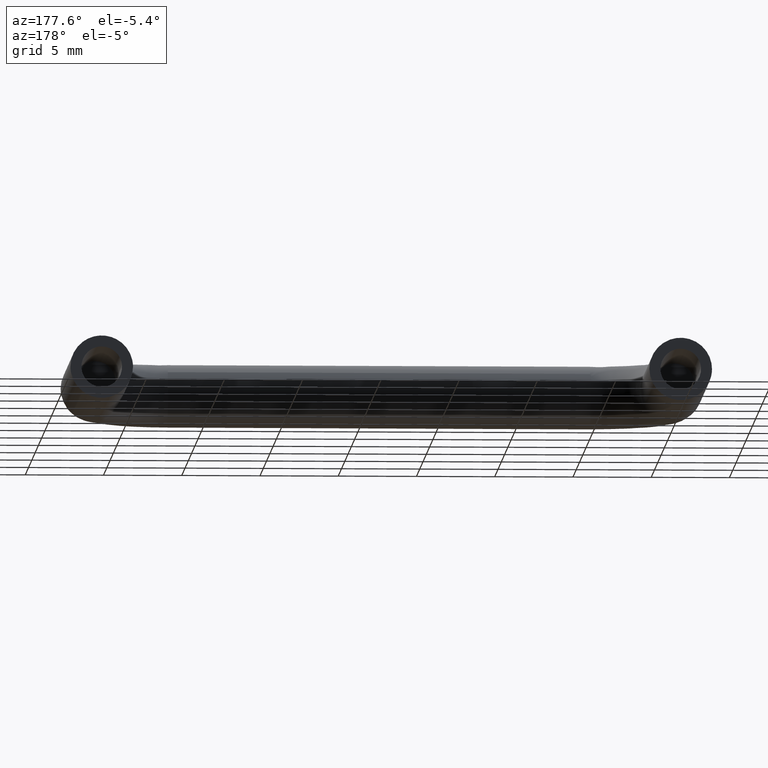
[diagram: clean part render]
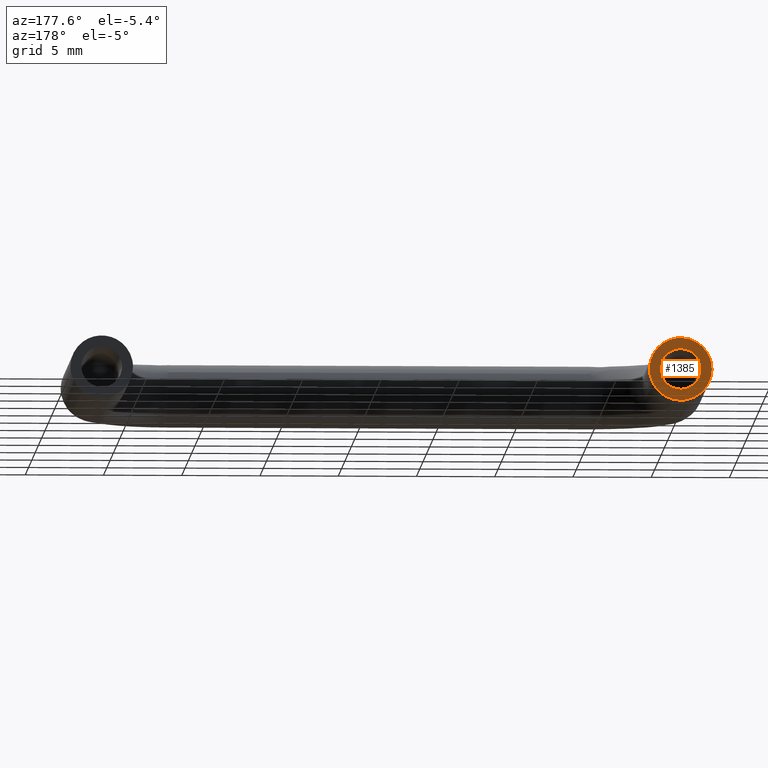
[diagram: same view with one face highlighted and labeled with its STEP entity id]
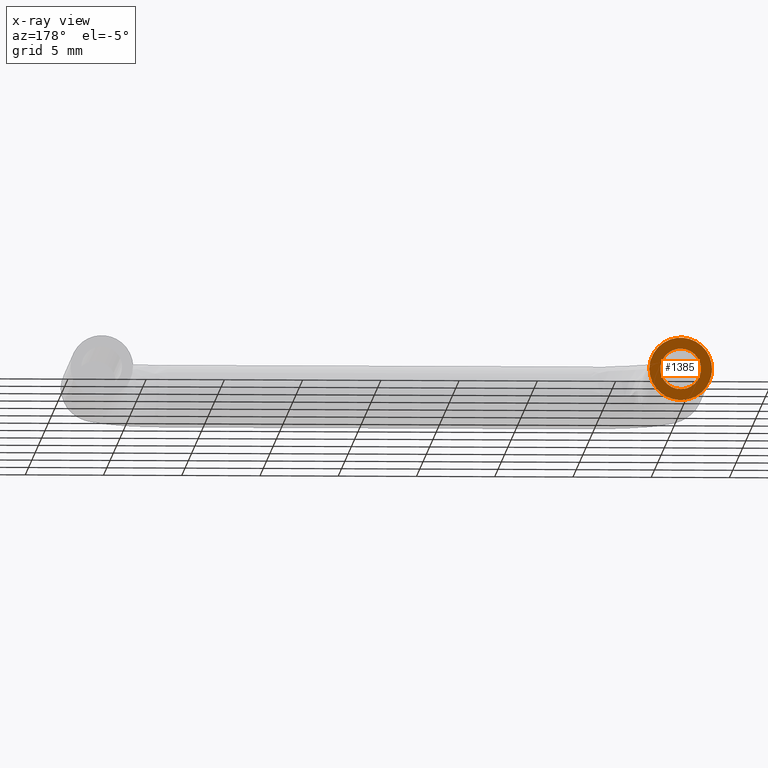
[diagram: x-ray of the same camera — body ghosted, the highlighted face saturated]
A machine part, auxiliary view. The second image highlights one B-rep face of the part: STEP entity #1385.
The next image is the same camera in x-ray: the body ghosted, the highlighted face saturated — about 0% of this face is hidden behind the body in this view.
In plain terms, the highlighted face is a freeform B-spline surface patch.
Its self-contained STEP definition (entity closure, byte-faithful):
#79=CARTESIAN_POINT('',(-1.295992533852372,-2.775558E-017,0.101996824455019));
#80=VERTEX_POINT('',#79);
#86=CARTESIAN_POINT('',(0.0,0.0,1.300000000000000));
#87=VERTEX_POINT('',#86);
#88=CARTESIAN_POINT('',(0.0,0.0,1.300000000000000));
#89=CARTESIAN_POINT('',(-1.201707639139262,0.0,1.300000000000000));
#90=CARTESIAN_POINT('',(-1.295992533852373,-2.775558E-017,0.101996824455019));
#98=(BOUNDED_CURVE()B_SPLINE_CURVE(2,(#88,#89,#90),.UNSPECIFIED.,.F.,.U.)B_SPLINE_CURVE_WITH_KNOTS((3,3),(0.0,0.236331300630434),.UNSPECIFIED.)CURVE()GEOMETRIC_REPRESENTATION_ITEM()RATIONAL_B_SPLINE_CURVE((1.0,0.723120658607931,0.969723356166946))REPRESENTATION_ITEM(''));
#99=EDGE_CURVE('',#87,#80,#98,.T.);
#101=CARTESIAN_POINT('',(1.295992533852372,-2.775558E-017,-0.101996824455019));
#102=VERTEX_POINT('',#101);
#103=CARTESIAN_POINT('',(1.295992533852372,-2.775558E-017,-0.101996824455019));
#104=CARTESIAN_POINT('',(1.300000000000001,0.0,-0.051077139118831));
#105=CARTESIAN_POINT('',(1.300000000000000,0.0,0.0));
#106=CARTESIAN_POINT('',(1.300000000000000,0.0,1.300000000000000));
#107=CARTESIAN_POINT('',(0.0,0.0,1.300000000000000));
#115=(BOUNDED_CURVE()B_SPLINE_CURVE(2,(#103,#104,#105,#106,#107),.UNSPECIFIED.,.F.,.U.)B_SPLINE_CURVE_WITH_KNOTS((3,2,3),(0.736331300630434,0.750000000000000,1.0),.UNSPECIFIED.)CURVE()GEOMETRIC_REPRESENTATION_ITEM()RATIONAL_B_SPLINE_CURVE((0.969723356166946,0.983986122578617,1.0,0.707106781186548,1.0))REPRESENTATION_ITEM(''));
#116=EDGE_CURVE('',#102,#87,#115,.T.);
#192=CARTESIAN_POINT('',(0.0,0.0,-1.300000000000000));
#193=VERTEX_POINT('',#192);
#194=CARTESIAN_POINT('',(0.0,0.0,-1.300000000000000));
#195=CARTESIAN_POINT('',(1.201707639139269,0.0,-1.300000000000000));
#196=CARTESIAN_POINT('',(1.295992533852372,-2.775558E-017,-0.101996824455019));
#204=(BOUNDED_CURVE()B_SPLINE_CURVE(2,(#194,#195,#196),.UNSPECIFIED.,.F.,.U.)B_SPLINE_CURVE_WITH_KNOTS((3,3),(0.500000000000000,0.736331300630435),.UNSPECIFIED.)CURVE()GEOMETRIC_REPRESENTATION_ITEM()RATIONAL_B_SPLINE_CURVE((1.0,0.723120658607929,0.969723356166948))REPRESENTATION_ITEM(''));
#205=EDGE_CURVE('',#193,#102,#204,.T.);
#207=CARTESIAN_POINT('',(-1.295992533852372,-2.775558E-017,0.101996824455019));
#208=CARTESIAN_POINT('',(-1.300000000000000,0.0,0.051077139118831));
#209=CARTESIAN_POINT('',(-1.300000000000000,0.0,0.0));
#210=CARTESIAN_POINT('',(-1.300000000000000,0.0,-1.300000000000000));
#211=CARTESIAN_POINT('',(0.0,0.0,-1.300000000000000));
#219=(BOUNDED_CURVE()B_SPLINE_CURVE(2,(#207,#208,#209,#210,#211),.UNSPECIFIED.,.F.,.U.)B_SPLINE_CURVE_WITH_KNOTS((3,2,3),(0.236331300630434,0.250000000000000,0.500000000000000),.UNSPECIFIED.)CURVE()GEOMETRIC_REPRESENTATION_ITEM()RATIONAL_B_SPLINE_CURVE((0.969723356166946,0.983986122578617,1.0,0.707106781186548,1.0))REPRESENTATION_ITEM(''));
#220=EDGE_CURVE('',#80,#193,#219,.T.);
#909=CARTESIAN_POINT('',(-1.654334544362891,6.163132E-016,1.123911569175985));
#910=VERTEX_POINT('',#909);
#916=CARTESIAN_POINT('',(-2.0,0.0,0.0));
#917=VERTEX_POINT('',#916);
#918=CARTESIAN_POINT('',(-2.0,0.0,0.0));
#919=CARTESIAN_POINT('',(-2.000000000000000,0.0,0.615111482286668));
#920=CARTESIAN_POINT('',(-1.654334544362892,6.163132E-016,1.123911569175985));
#928=(BOUNDED_CURVE()B_SPLINE_CURVE(2,(#918,#919,#920),.UNSPECIFIED.,.F.,.U.)B_SPLINE_CURVE_WITH_KNOTS((3,3),(0.500000000000000,0.596450219094675),.UNSPECIFIED.)CURVE()GEOMETRIC_REPRESENTATION_ITEM()RATIONAL_B_SPLINE_CURVE((1.0,0.887001539496392,0.861192889176255))REPRESENTATION_ITEM(''));
#929=EDGE_CURVE('',#917,#910,#928,.T.);
#931=CARTESIAN_POINT('',(2.0,0.0,0.0));
#932=VERTEX_POINT('',#931);
#933=CARTESIAN_POINT('',(2.0,0.0,0.0));
#934=CARTESIAN_POINT('',(2.000000000000000,0.0,-2.000000000000000));
#935=CARTESIAN_POINT('',(0.0,0.0,-2.0));
#936=CARTESIAN_POINT('',(-2.000000000000000,0.0,-2.000000000000000));
#937=CARTESIAN_POINT('',(-2.0,0.0,0.0));
#945=(BOUNDED_CURVE()B_SPLINE_CURVE(2,(#933,#934,#935,#936,#937),.UNSPECIFIED.,.F.,.U.)B_SPLINE_CURVE_WITH_KNOTS((3,2,3),(0.0,0.250000000000000,0.500000000000000),.UNSPECIFIED.)CURVE()GEOMETRIC_REPRESENTATION_ITEM()RATIONAL_B_SPLINE_CURVE((1.0,0.707106781186548,1.0,0.707106781186548,1.0))REPRESENTATION_ITEM(''));
#946=EDGE_CURVE('',#932,#917,#945,.T.);
#948=CARTESIAN_POINT('',(-0.568029256808809,-2.775558E-016,1.917639894090389));
#949=VERTEX_POINT('',#948);
#950=CARTESIAN_POINT('',(-0.568029256808809,-2.775558E-016,1.917639894090389));
#951=CARTESIAN_POINT('',(-0.289985436214155,0.0,2.000000000000000));
#952=CARTESIAN_POINT('',(0.0,0.0,2.0));
#953=CARTESIAN_POINT('',(2.000000000000000,0.0,2.000000000000000));
#954=CARTESIAN_POINT('',(2.0,0.0,0.0));
#962=(BOUNDED_CURVE()B_SPLINE_CURVE(2,(#950,#951,#952,#953,#954),.UNSPECIFIED.,.F.,.U.)B_SPLINE_CURVE_WITH_KNOTS((3,2,3),(0.701641637059280,0.750000000000000,1.0),.UNSPECIFIED.)CURVE()GEOMETRIC_REPRESENTATION_ITEM()RATIONAL_B_SPLINE_CURVE((0.908607385770247,0.943344653686973,1.0,0.707106781186548,1.0))REPRESENTATION_ITEM(''));
#963=EDGE_CURVE('',#949,#932,#962,.T.);
#1069=CARTESIAN_POINT('',(-1.654334544362892,6.163132E-016,1.123911569175985));
#1070=CARTESIAN_POINT('',(-1.252923917225407,0.0,1.714765409602162));
#1071=CARTESIAN_POINT('',(-0.568029256808809,-2.775558E-016,1.917639894090389));
#1079=(BOUNDED_CURVE()B_SPLINE_CURVE(2,(#1069,#1070,#1071),.UNSPECIFIED.,.F.,.U.)B_SPLINE_CURVE_WITH_KNOTS((3,3),(0.596450219094674,0.701641637059280),.UNSPECIFIED.)CURVE()GEOMETRIC_REPRESENTATION_ITEM()RATIONAL_B_SPLINE_CURVE((0.861192889176256,0.833045223484973,0.908607385770247))REPRESENTATION_ITEM(''));
#1080=EDGE_CURVE('',#910,#949,#1079,.T.);
#1368=CARTESIAN_POINT('',(-2.199799992247224,0.0,-2.199776240921557));
#1369=CARTESIAN_POINT('',(2.199800099535584,0.0,-2.199776240921557));
#1370=CARTESIAN_POINT('',(-2.199799992247224,0.0,2.199300846195758));
#1371=CARTESIAN_POINT('',(2.199800099535585,0.0,2.199300846195758));
#1372=B_SPLINE_SURFACE_WITH_KNOTS('',1,1,((#1368,#1370),(#1369,#1371)),.UNSPECIFIED.,.F.,.F.,.U.,(2,2),(2,2),(0.0,4.399600091782808),(0.0,4.399077087117315),.UNSPECIFIED.);
#1373=ORIENTED_EDGE('',*,*,#946,.T.);
#1374=ORIENTED_EDGE('',*,*,#929,.T.);
#1375=ORIENTED_EDGE('',*,*,#1080,.T.);
#1376=ORIENTED_EDGE('',*,*,#963,.T.);
#1377=EDGE_LOOP('',(#1373,#1374,#1375,#1376));
#1378=FACE_OUTER_BOUND('',#1377,.T.);
#1379=ORIENTED_EDGE('',*,*,#205,.T.);
#1380=ORIENTED_EDGE('',*,*,#116,.T.);
#1381=ORIENTED_EDGE('',*,*,#99,.T.);
#1382=ORIENTED_EDGE('',*,*,#220,.T.);
#1383=EDGE_LOOP('',(#1379,#1380,#1381,#1382));
#1384=FACE_BOUND('',#1383,.T.);
#1385=ADVANCED_FACE('',(#1378,#1384),#1372,.F.);